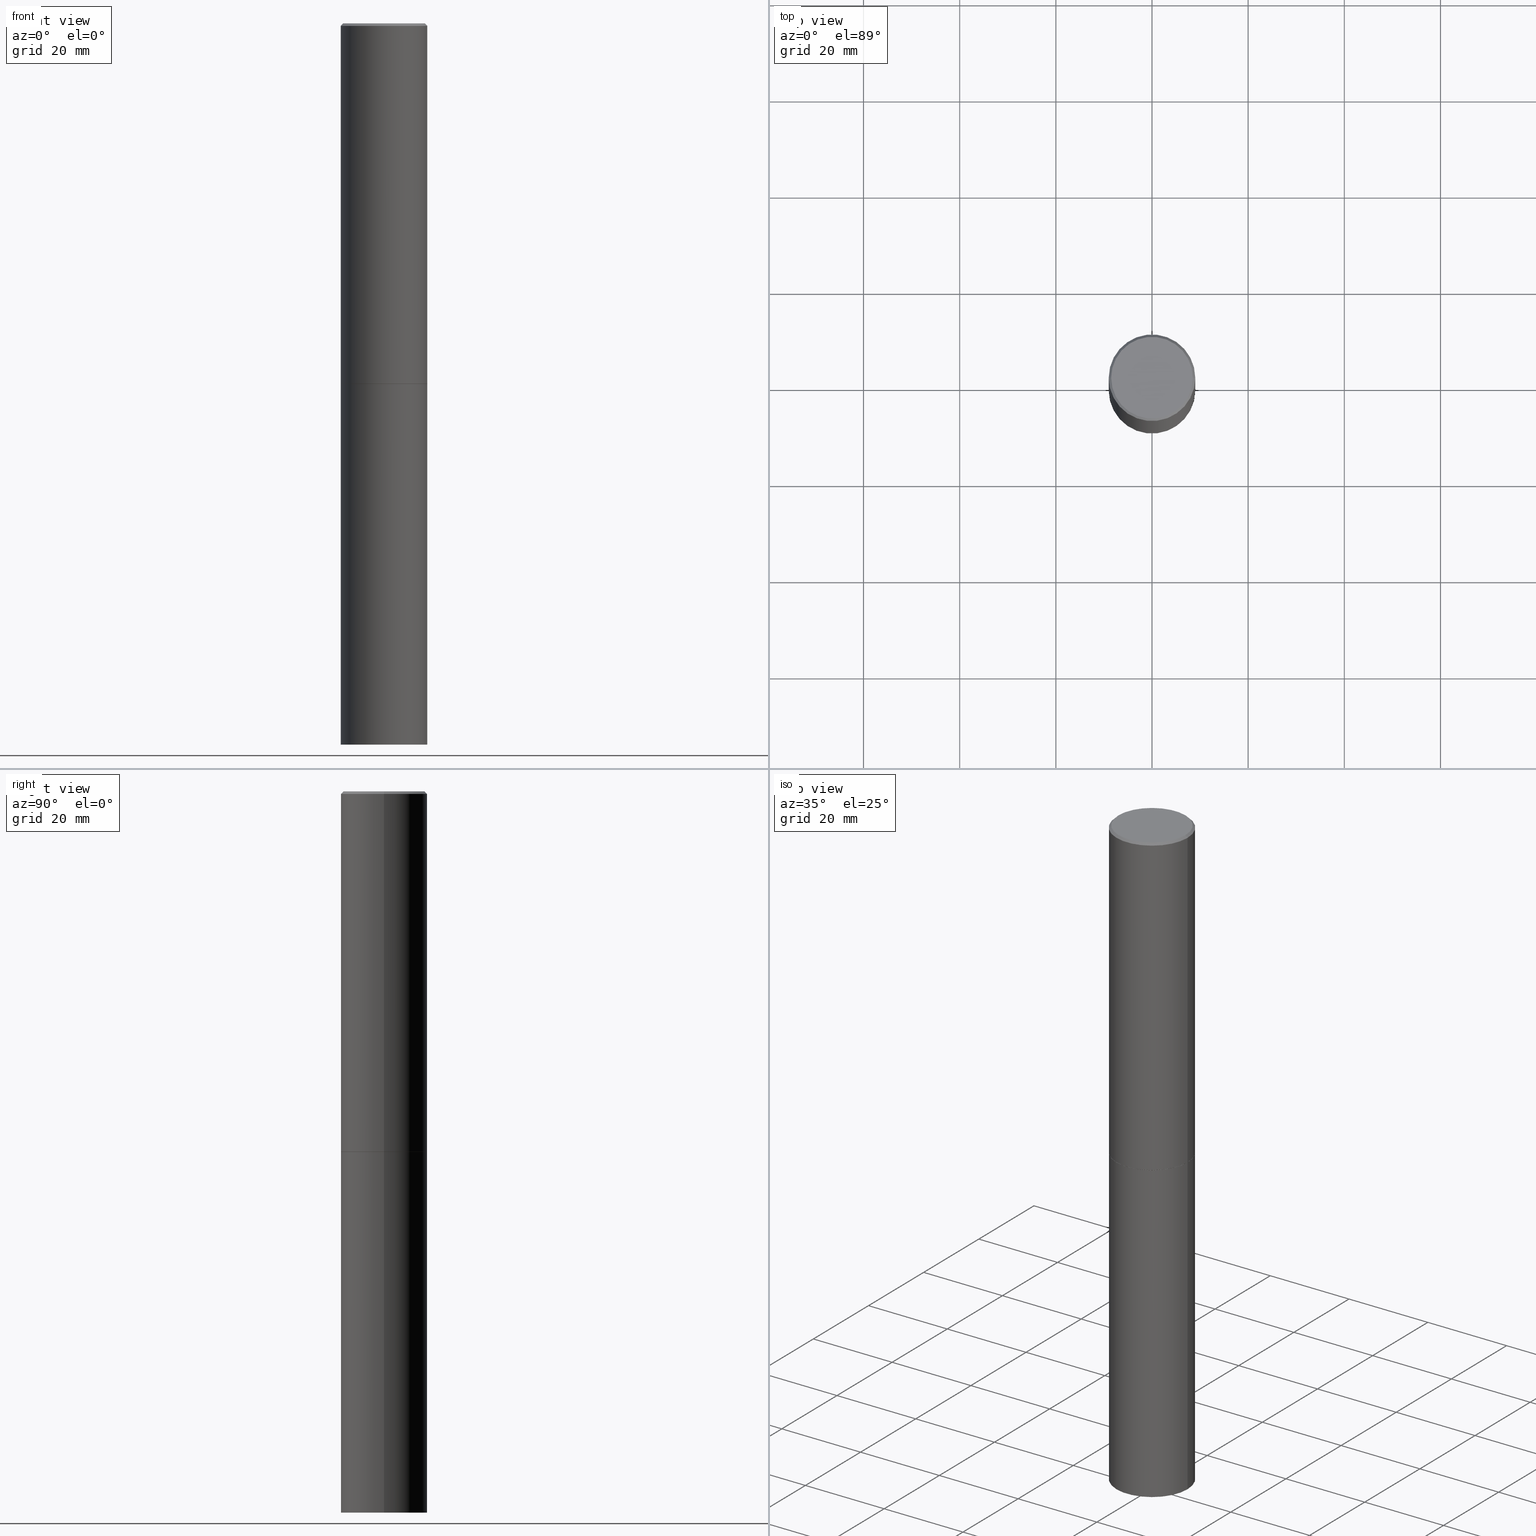
[diagram: canonical four-view strip — front | top / right | iso, engineering-drawing reading convention]
A machine part, canonical four-view strip (front | top / right | iso — engineering-drawing reading convention). The complete STEP part file that produces these views, byte-faithful:
ISO-10303-21;
HEADER;
FILE_DESCRIPTION (( 'STEP AP203' ),
    '1' );
FILE_NAME ('49463.STEP',
    '2024-02-28T22:24:11',
    ( '' ),
    ( '' ),
    'SwSTEP 2.0',
    'SolidWorks 2023',
    '' );
FILE_SCHEMA (( 'CONFIG_CONTROL_DESIGN' ));
ENDSEC;

DATA;
#1 = CALENDAR_DATE ( 2024, 28, 2 ) ;
#2 = FACE_OUTER_BOUND ( 'NONE', #45, .T. ) ;
#3 = PRODUCT_DEFINITION_SHAPE ( 'NONE', 'NONE',  #6 ) ;
#4 = CARTESIAN_POINT ( 'NONE',  ( 0.3543499999999999983, -2.309335587137632500E-14, -5.905499999999999972 ) ) ;
#5 = DIRECTION ( 'NONE',  ( -2.445468806185136597E-29, 3.491481338843145583E-15, 1.000000000000000000 ) ) ;
#6 = PRODUCT_DEFINITION ( 'UNKNOWN', '', #81, #237 ) ;
#7 = ORIENTED_EDGE ( 'NONE', *, *, #172, .F. ) ;
#8 = CARTESIAN_POINT ( 'NONE',  ( -0.3543499999999999983, -2.670009363154171868E-15, -2.951700000000000212 ) ) ;
#9 = EDGE_LOOP ( 'NONE', ( #117, #97, #40, #299 ) ) ;
#10 = DIRECTION ( 'NONE',  ( 1.000000000000000000, -6.982962677686266711E-15, 4.876176775795935232E-29 ) ) ;
#11 = VERTEX_POINT ( 'NONE', #356 ) ;
#12 = FACE_OUTER_BOUND ( 'NONE', #201, .T. ) ;
#13 = ORIENTED_EDGE ( 'NONE', *, *, #26, .F. ) ;
#14 = CIRCLE ( 'NONE', #79, 0.3533499999999999974 ) ;
#15 = CARTESIAN_POINT ( 'NONE',  ( -0.3533499999999999974, -7.793295738045619809E-15, -2.952700000000000546 ) ) ;
#16 = EDGE_CURVE ( 'NONE', #176, #178, #47, .T. ) ;
#17 = DIRECTION ( 'NONE',  ( -2.445468806185136597E-29, 3.491481338843145583E-15, 1.000000000000000000 ) ) ;
#18 = APPLICATION_CONTEXT ( 'configuration controlled 3d designs of mechanical parts and assemblies' ) ;
#19 = CIRCLE ( 'NONE', #161, 0.3543499999999999983 ) ;
#20 = DIRECTION ( 'NONE',  ( -2.445468806185136597E-29, 3.491481338843145583E-15, 1.000000000000000000 ) ) ;
#21 = EDGE_LOOP ( 'NONE', ( #344, #270, #125, #235 ) ) ;
#22 = CARTESIAN_POINT ( 'NONE',  ( 7.220735744022853640E-29, -1.030929694920215659E-14, -2.952700000000000546 ) ) ;
#23 = CALENDAR_DATE ( 2024, 28, 2 ) ;
#24 = CARTESIAN_POINT ( 'NONE',  ( 0.3533499999999999974, -1.277672681136259888E-14, -2.952700000000000546 ) ) ;
#25 = PERSON_AND_ORGANIZATION ( #271, #190 ) ;
#26 = EDGE_CURVE ( 'NONE', #355, #208, #131, .T. ) ;
#27 = PERSON_AND_ORGANIZATION_ROLE ( 'creator' ) ;
#28 = AXIS2_PLACEMENT_3D ( 'NONE', #341, #88, #197 ) ;
#29 = DIRECTION ( 'NONE',  ( -2.445468806185136597E-29, 3.491481338843145583E-15, 1.000000000000000000 ) ) ;
#30 = DIRECTION ( 'NONE',  ( -1.000000000000000000, 6.982962677686266711E-15, 0.000000000000000000 ) ) ;
#31 = CARTESIAN_POINT ( 'NONE',  ( -0.3543499999999999983, -1.294631181370425968E-14, -5.905499999999999972 ) ) ;
#32 = CLOSED_SHELL ( 'NONE', ( #306, #277, #248, #76, #294, #220, #297, #92 ) ) ;
#33 = AXIS2_PLACEMENT_3D ( 'NONE', #22, #188, #129 ) ;
#34 = AXIS2_PLACEMENT_3D ( 'NONE', #153, #361, #244 ) ;
#35 = CYLINDRICAL_SURFACE ( 'NONE', #284, 0.3543499999999998873 ) ;
#36 = ORIENTED_EDGE ( 'NONE', *, *, #209, .F. ) ;
#37 = DIRECTION ( 'NONE',  ( -1.000000000000000000, 6.982962677686265922E-15, -4.876176775795935793E-29 ) ) ;
#38 = EDGE_CURVE ( 'NONE', #206, #348, #175, .T. ) ;
#39 = CYLINDRICAL_SURFACE ( 'NONE', #34, 0.3543499999999998873 ) ;
#40 = ORIENTED_EDGE ( 'NONE', *, *, #116, .T. ) ;
#41 = AXIS2_PLACEMENT_3D ( 'NONE', #205, #65, #354 ) ;
#42 = DIRECTION ( 'NONE',  ( 1.000000000000000000, 0.000000000000000000, 0.000000000000000000 ) ) ;
#43 = CARTESIAN_POINT ( 'NONE',  ( 1.444171603492632270E-28, -2.061894304653819197E-14, -5.905499999999999972 ) ) ;
#44 = ADVANCED_FACE ( 'NONE', ( #2 ), #221, .T. ) ;
#45 = EDGE_LOOP ( 'NONE', ( #145, #66 ) ) ;
#46 = FACE_OUTER_BOUND ( 'NONE', #183, .T. ) ;
#47 = CIRCLE ( 'NONE', #353, 0.3543499999999999983 ) ;
#48 = AXIS2_PLACEMENT_3D ( 'NONE', #207, #343, #30 ) ;
#49 = DIRECTION ( 'NONE',  ( -1.000000000000000000, 6.982962677686265922E-15, -4.876176775795935793E-29 ) ) ;
#50 = ORIENTED_EDGE ( 'NONE', *, *, #154, .T. ) ;
#51 = SHAPE_DEFINITION_REPRESENTATION ( #3, #52 ) ;
#52 = ADVANCED_BREP_SHAPE_REPRESENTATION ( '49463', ( #308, #61, #112 ), #229 ) ;
#53 = EDGE_CURVE ( 'NONE', #176, #11, #282, .T. ) ;
#54 = COORDINATED_UNIVERSAL_TIME_OFFSET ( 5, 0, .BEHIND. ) ;
#55 = AXIS2_PLACEMENT_3D ( 'NONE', #230, #324, #37 ) ;
#56 = CALENDAR_DATE ( 2024, 28, 2 ) ;
#57 = DIRECTION ( 'NONE',  ( -2.445468806185136877E-29, 3.491481338843145188E-15, 1.000000000000000000 ) ) ;
#58 = COORDINATED_UNIVERSAL_TIME_OFFSET ( 5, 0, .BEHIND. ) ;
#59 = CC_DESIGN_PERSON_AND_ORGANIZATION_ASSIGNMENT ( #138, #136, ( #120 ) ) ;
#60 = CIRCLE ( 'NONE', #255, 0.3343499999999996475 ) ;
#61 = MANIFOLD_SOLID_BREP ( 'Body-Move/Copy2[2]', #32 ) ;
#62 = DIRECTION ( 'NONE',  ( -2.445468806185136597E-29, 3.491481338843145583E-15, 1.000000000000000000 ) ) ;
#63 = EDGE_LOOP ( 'NONE', ( #13, #169, #350, #288 ) ) ;
#64 = APPROVAL ( #113, 'UNSPECIFIED' ) ;
#65 = DIRECTION ( 'NONE',  ( -2.445468806185136597E-29, 3.491481338843145583E-15, 1.000000000000000000 ) ) ;
#66 = ORIENTED_EDGE ( 'NONE', *, *, #196, .F. ) ;
#67 = LINE ( 'NONE', #141, #323 ) ;
#68 = EDGE_LOOP ( 'NONE', ( #50, #300, #160, #119 ) ) ;
#69 = FACE_OUTER_BOUND ( 'NONE', #273, .T. ) ;
#70 = ORIENTED_EDGE ( 'NONE', *, *, #38, .F. ) ;
#71 = LINE ( 'NONE', #217, #335 ) ;
#72 = ORIENTED_EDGE ( 'NONE', *, *, #53, .T. ) ;
#73 = MECHANICAL_CONTEXT ( 'NONE', #18, 'mechanical' ) ;
#74 = EDGE_CURVE ( 'NONE', #233, #348, #253, .T. ) ;
#75 = APPROVAL_PERSON_ORGANIZATION ( #365, #64, #109 ) ;
#76 = ADVANCED_FACE ( 'NONE', ( #225 ), #104, .T. ) ;
#77 = DIRECTION ( 'NONE',  ( 0.7071067811865459074, -7.319954787623251312E-15, -0.7071067811865492381 ) ) ;
#78 = PLANE ( 'NONE',  #242 ) ;
#79 = AXIS2_PLACEMENT_3D ( 'NONE', #274, #20, #330 ) ;
#80 = CALENDAR_DATE ( 2024, 28, 2 ) ;
#81 = PRODUCT_DEFINITION_FORMATION_WITH_SPECIFIED_SOURCE ( 'ANY', '', #198, .NOT_KNOWN. ) ;
#82 = APPROVAL_DATE_TIME ( #86, #240 ) ;
#83 = EDGE_CURVE ( 'NONE', #327, #233, #279, .T. ) ;
#84 = AXIS2_PLACEMENT_3D ( 'NONE', #268, #272, #49 ) ;
#85 = CC_DESIGN_APPROVAL ( #240, ( #6 ) ) ;
#86 = DATE_AND_TIME ( #23, #346 ) ;
#87 = DIMENSIONAL_EXPONENTS ( 1.000000000000000000, 0.000000000000000000, 0.000000000000000000, 0.000000000000000000, 0.000000000000000000, 0.000000000000000000, 0.000000000000000000 ) ;
#88 = DIRECTION ( 'NONE',  ( 2.445468806185136597E-29, -3.491481338843145583E-15, -1.000000000000000000 ) ) ;
#89 = CARTESIAN_POINT ( 'NONE',  ( 7.220735744022852519E-29, -1.030929694920215502E-14, -2.952700000000000102 ) ) ;
#90 = CIRCLE ( 'NONE', #222, 0.3533499999999999974 ) ;
#91 = ORIENTED_EDGE ( 'NONE', *, *, #116, .F. ) ;
#92 = ADVANCED_FACE ( 'NONE', ( #140 ), #202, .F. ) ;
#93 = FACE_OUTER_BOUND ( 'NONE', #185, .T. ) ;
#94 = DIRECTION ( 'NONE',  ( 1.000000000000000000, -6.982962677686266711E-15, 4.876061227832602160E-29 ) ) ;
#95 = ORIENTED_EDGE ( 'NONE', *, *, #336, .F. ) ;
#96 = CARTESIAN_POINT ( 'NONE',  ( 0.000000000000000000, 0.000000000000000000, 0.000000000000000000 ) ) ;
#97 = ORIENTED_EDGE ( 'NONE', *, *, #128, .F. ) ;
#98 = CC_DESIGN_APPROVAL ( #123, ( #81 ) ) ;
#99 = CARTESIAN_POINT ( 'NONE',  ( 1.444171603492632270E-28, -2.061894304653819197E-14, -5.905499999999999972 ) ) ;
#100 = ORIENTED_EDGE ( 'NONE', *, *, #16, .T. ) ;
#101 = FACE_OUTER_BOUND ( 'NONE', #173, .T. ) ;
#102 = DIRECTION ( 'NONE',  ( -0.7071067811864267805, 7.493145998869918709E-15, 0.7071067811866682540 ) ) ;
#103 = PRODUCT_RELATED_PRODUCT_CATEGORY ( 'detail', '', ( #198 ) ) ;
#104 = CONICAL_SURFACE ( 'NONE', #28, 0.3543499999999996652, 0.7853981633974459475 ) ;
#105 = LOCAL_TIME ( 17, 24, 11.00000000000000000, #224 ) ;
#106 = CARTESIAN_POINT ( 'NONE',  ( 0.3533499999999999974, -1.277672681136259888E-14, -2.952700000000000546 ) ) ;
#107 = CARTESIAN_POINT ( 'NONE',  ( 7.220735744022853640E-29, -1.030929694920215659E-14, -2.952700000000000546 ) ) ;
#108 = APPROVAL_STATUS ( 'not_yet_approved' ) ;
#109 = APPROVAL_ROLE ( '' ) ;
#110 = APPROVAL_ROLE ( '' ) ;
#111 = VECTOR ( 'NONE', #115, 39.37007874015748143 ) ;
#112 = AXIS2_PLACEMENT_3D ( 'NONE', #187, #182, #42 ) ;
#113 = APPROVAL_STATUS ( 'not_yet_approved' ) ;
#114 = DIRECTION ( 'NONE',  ( -1.000000000000000000, 6.982962677686265922E-15, -4.876176775795935793E-29 ) ) ;
#115 = DIRECTION ( 'NONE',  ( 0.7071067811864267805, -2.468850131080992517E-15, 0.7071067811866682540 ) ) ;
#116 = EDGE_CURVE ( 'NONE', #148, #206, #351, .T. ) ;
#117 = ORIENTED_EDGE ( 'NONE', *, *, #329, .F. ) ;
#118 = DIRECTION ( 'NONE',  ( 1.000000000000000000, -6.982962677686265922E-15, 0.000000000000000000 ) ) ;
#119 = ORIENTED_EDGE ( 'NONE', *, *, #74, .F. ) ;
#120 = SECURITY_CLASSIFICATION ( '', '', #254 ) ;
#121 = DIRECTION ( 'NONE',  ( 1.000000000000000000, -6.982962677686267499E-15, 0.000000000000000000 ) ) ;
#122 = ORIENTED_EDGE ( 'NONE', *, *, #286, .F. ) ;
#123 = APPROVAL ( #108, 'UNSPECIFIED' ) ;
#124 = FACE_OUTER_BOUND ( 'NONE', #68, .T. ) ;
#125 = ORIENTED_EDGE ( 'NONE', *, *, #154, .F. ) ;
#126 = CARTESIAN_POINT ( 'NONE',  ( 0.3543499999999999983, -1.278021829270144189E-14, -2.951700000000000212 ) ) ;
#127 = CONICAL_SURFACE ( 'NONE', #366, 0.3533499999999999974, 0.7853981633972775267 ) ;
#128 = EDGE_CURVE ( 'NONE', #148, #159, #60, .T. ) ;
#129 = DIRECTION ( 'NONE',  ( 1.000000000000000000, -6.982962677686267499E-15, 0.000000000000000000 ) ) ;
#130 = CARTESIAN_POINT ( 'NONE',  ( 0.3543499999999996652, -2.500847092287203323E-15, -0.02000000000000008021 ) ) ;
#131 = LINE ( 'NONE', #215, #260 ) ;
#132 = DIRECTION ( 'NONE',  ( 1.000000000000000000, -6.982962677686265922E-15, 0.000000000000000000 ) ) ;
#133 = AXIS2_PLACEMENT_3D ( 'NONE', #158, #301, #132 ) ;
#134 = CC_DESIGN_SECURITY_CLASSIFICATION ( #120, ( #81 ) ) ;
#135 = DIRECTION ( 'NONE',  ( -2.445468806185136877E-29, 3.491481338843145188E-15, 1.000000000000000000 ) ) ;
#136 = PERSON_AND_ORGANIZATION_ROLE ( 'classification_officer' ) ;
#137 = DIRECTION ( 'NONE',  ( -2.445468806185136877E-29, 3.491481338843145188E-15, 1.000000000000000000 ) ) ;
#138 = PERSON_AND_ORGANIZATION ( #271, #190 ) ;
#139 = APPROVAL_DATE_TIME ( #281, #123 ) ;
#140 = FACE_OUTER_BOUND ( 'NONE', #142, .T. ) ;
#141 = CARTESIAN_POINT ( 'NONE',  ( -0.3543499999999999983, 2.517808184165914997E-15, -1.743024649231826066E-29 ) ) ;
#142 = EDGE_LOOP ( 'NONE', ( #319, #265 ) ) ;
#143 = CARTESIAN_POINT ( 'NONE',  ( -0.3543499999999996652, 2.404583198061263029E-15, -0.02000000000000008021 ) ) ;
#144 = AXIS2_PLACEMENT_3D ( 'NONE', #249, #162, #114 ) ;
#145 = ORIENTED_EDGE ( 'NONE', *, *, #16, .F. ) ;
#146 = LOCAL_TIME ( 17, 24, 11.00000000000000000, #334 ) ;
#147 = CARTESIAN_POINT ( 'NONE',  ( -1.043851414335219820E-46, 1.490343170380447200E-32, 4.268512490100411279E-18 ) ) ;
#148 = VERTEX_POINT ( 'NONE', #171 ) ;
#149 = DIRECTION ( 'NONE',  ( -2.445468806185136597E-29, 3.491481338843145583E-15, 1.000000000000000000 ) ) ;
#150 = DIRECTION ( 'NONE',  ( 1.000000000000000000, -6.982962677686265922E-15, 0.000000000000000000 ) ) ;
#151 = ORIENTED_EDGE ( 'NONE', *, *, #74, .T. ) ;
#152 = AXIS2_PLACEMENT_3D ( 'NONE', #89, #149, #318 ) ;
#153 = CARTESIAN_POINT ( 'NONE',  ( 0.000000000000000000, 0.000000000000000000, 0.000000000000000000 ) ) ;
#154 = EDGE_CURVE ( 'NONE', #233, #208, #19, .T. ) ;
#155 = UNCERTAINTY_MEASURE_WITH_UNIT (LENGTH_MEASURE( 1.000000000000000082E-05 ), #362, 'distance_accuracy_value', 'NONE');
#156 = LENGTH_MEASURE_WITH_UNIT ( LENGTH_MEASURE( 0.02539999999999999897 ), #331 );
#157 =( NAMED_UNIT ( * ) SI_UNIT ( $, .STERADIAN. ) SOLID_ANGLE_UNIT ( ) );
#158 = CARTESIAN_POINT ( 'NONE',  ( 7.220735744022852519E-29, -1.030929694920215502E-14, -2.952700000000000102 ) ) ;
#159 = VERTEX_POINT ( 'NONE', #258 ) ;
#160 = ORIENTED_EDGE ( 'NONE', *, *, #266, .F. ) ;
#161 = AXIS2_PLACEMENT_3D ( 'NONE', #289, #326, #118 ) ;
#162 = DIRECTION ( 'NONE',  ( 2.438088387897960049E-29, -3.491481338843145188E-15, -1.000000000000000000 ) ) ;
#163 = DATE_TIME_ROLE ( 'classification_date' ) ;
#164 = DATE_AND_TIME ( #56, #261 ) ;
#165 = CLOSED_SHELL ( 'NONE', ( #181, #44, #357, #193 ) ) ;
#166 = CIRCLE ( 'NONE', #133, 0.3543499999999999983 ) ;
#167 = DIRECTION ( 'NONE',  ( -2.445468806185136597E-29, 3.491481338843145583E-15, 1.000000000000000000 ) ) ;
#168 = CARTESIAN_POINT ( 'NONE',  ( -0.3543499999999996652, 2.404583198061263029E-15, -0.02000000000000008021 ) ) ;
#169 = ORIENTED_EDGE ( 'NONE', *, *, #286, .T. ) ;
#170 = CC_DESIGN_PERSON_AND_ORGANIZATION_ASSIGNMENT ( #310, #27, ( #6 ) ) ;
#171 = CARTESIAN_POINT ( 'NONE',  ( -0.3343499999999996475, 2.369668384672832169E-15, 4.268512490083961526E-18 ) ) ;
#172 = EDGE_CURVE ( 'NONE', #178, #247, #67, .T. ) ;
#173 = EDGE_LOOP ( 'NONE', ( #352, #322, #151, #70 ) ) ;
#174 = CYLINDRICAL_SURFACE ( 'NONE', #199, 0.3543499999999999983 ) ;
#175 = CIRCLE ( 'NONE', #212, 0.3543499999999996652 ) ;
#176 = VERTEX_POINT ( 'NONE', #4 ) ;
#177 = DIRECTION ( 'NONE',  ( -2.445468806185136597E-29, 3.491481338843145583E-15, 1.000000000000000000 ) ) ;
#178 = VERTEX_POINT ( 'NONE', #31 ) ;
#179 = EDGE_CURVE ( 'NONE', #247, #11, #315, .T. ) ;
#180 =( NAMED_UNIT ( * ) PLANE_ANGLE_UNIT ( ) SI_UNIT ( $, .RADIAN. ) );
#181 = ADVANCED_FACE ( 'NONE', ( #69 ), #174, .T. ) ;
#182 = DIRECTION ( 'NONE',  ( 0.000000000000000000, 0.000000000000000000, 1.000000000000000000 ) ) ;
#183 = EDGE_LOOP ( 'NONE', ( #317, #259 ) ) ;
#184 = VECTOR ( 'NONE', #135, 39.37007874015748143 ) ;
#185 = EDGE_LOOP ( 'NONE', ( #7, #231, #72, #290 ) ) ;
#186 = CC_DESIGN_DATE_AND_TIME_ASSIGNMENT ( #164, #309, ( #6 ) ) ;
#187 = CARTESIAN_POINT ( 'NONE',  ( 0.000000000000000000, 0.000000000000000000, 0.000000000000000000 ) ) ;
#188 = DIRECTION ( 'NONE',  ( -2.445468806185136597E-29, 3.491481338843145583E-15, 1.000000000000000000 ) ) ;
#189 = AXIS2_PLACEMENT_3D ( 'NONE', #99, #62, #234 ) ;
#190 = ORGANIZATION ( 'UNSPECIFIED', 'UNSPECIFIED', '' ) ;
#191 = DATE_AND_TIME ( #80, #146 ) ;
#192 = CC_DESIGN_DATE_AND_TIME_ASSIGNMENT ( #364, #163, ( #120 ) ) ;
#193 = ADVANCED_FACE ( 'NONE', ( #93 ), #292, .T. ) ;
#194 = APPROVAL_ROLE ( '' ) ;
#195 = PERSON_AND_ORGANIZATION ( #271, #190 ) ;
#196 = EDGE_CURVE ( 'NONE', #178, #176, #250, .T. ) ;
#197 = DIRECTION ( 'NONE',  ( -1.000000000000000000, 6.982962677686266711E-15, 0.000000000000000000 ) ) ;
#198 = PRODUCT ( '49463', '49463', '', ( #73 ) ) ;
#199 = AXIS2_PLACEMENT_3D ( 'NONE', #96, #347, #236 ) ;
#200 = FACE_OUTER_BOUND ( 'NONE', #63, .T. ) ;
#201 = EDGE_LOOP ( 'NONE', ( #325, #359, #227, #91 ) ) ;
#202 = PLANE ( 'NONE',  #55 ) ;
#203 = DIRECTION ( 'NONE',  ( -2.445468806185136877E-29, 3.491481338843145188E-15, 1.000000000000000000 ) ) ;
#204 = ORIENTED_EDGE ( 'NONE', *, *, #172, .T. ) ;
#205 = CARTESIAN_POINT ( 'NONE',  ( 0.000000000000000000, 0.000000000000000000, 0.000000000000000000 ) ) ;
#206 = VERTEX_POINT ( 'NONE', #143 ) ;
#207 = CARTESIAN_POINT ( 'NONE',  ( 4.890937612370293302E-31, -6.982962677686318726E-17, -0.02000000000000008021 ) ) ;
#208 = VERTEX_POINT ( 'NONE', #8 ) ;
#209 = EDGE_CURVE ( 'NONE', #327, #355, #90, .T. ) ;
#210 = CARTESIAN_POINT ( 'NONE',  ( 7.218290275216666916E-29, -1.030580546786331359E-14, -2.951700000000000212 ) ) ;
#211 = CARTESIAN_POINT ( 'NONE',  ( 4.890937612370293302E-31, -6.982962677686318726E-17, -0.02000000000000008021 ) ) ;
#212 = AXIS2_PLACEMENT_3D ( 'NONE', #211, #332, #302 ) ;
#213 = CC_DESIGN_APPROVAL ( #64, ( #120 ) ) ;
#214 = DIRECTION ( 'NONE',  ( 1.000000000000000000, -6.982962677686265922E-15, 4.876176775795935793E-29 ) ) ;
#215 = CARTESIAN_POINT ( 'NONE',  ( -0.3533499999999999974, -7.798594192393843789E-15, -2.952700000000000546 ) ) ;
#216 = FACE_OUTER_BOUND ( 'NONE', #21, .T. ) ;
#217 = CARTESIAN_POINT ( 'NONE',  ( 0.3543499999999996652, -2.500847092287203323E-15, -0.02000000000000008021 ) ) ;
#218 = VECTOR ( 'NONE', #57, 39.37007874015748143 ) ;
#219 = PERSON_AND_ORGANIZATION ( #271, #190 ) ;
#220 = ADVANCED_FACE ( 'NONE', ( #200 ), #127, .T. ) ;
#221 = PLANE ( 'NONE',  #144 ) ;
#222 = AXIS2_PLACEMENT_3D ( 'NONE', #262, #5, #121 ) ;
#223 = APPROVAL_PERSON_ORGANIZATION ( #195, #240, #110 ) ;
#224 = COORDINATED_UNIVERSAL_TIME_OFFSET ( 5, 0, .BEHIND. ) ;
#225 = FACE_OUTER_BOUND ( 'NONE', #9, .T. ) ;
#226 = DIRECTION ( 'NONE',  ( -2.445468806185136597E-29, 3.491481338843145583E-15, 1.000000000000000000 ) ) ;
#227 = ORIENTED_EDGE ( 'NONE', *, *, #266, .T. ) ;
#228 = VECTOR ( 'NONE', #137, 39.37007874015748143 ) ;
#229 =( GEOMETRIC_REPRESENTATION_CONTEXT ( 3 ) GLOBAL_UNCERTAINTY_ASSIGNED_CONTEXT ( ( #155 ) ) GLOBAL_UNIT_ASSIGNED_CONTEXT ( ( #362, #180, #157 ) ) REPRESENTATION_CONTEXT ( 'NONE', 'WORKASPACE' ) );
#230 = CARTESIAN_POINT ( 'NONE',  ( 2.334753571284400520E-15, 0.3343499999999996475, -1.165242529397154385E-15 ) ) ;
#231 = ORIENTED_EDGE ( 'NONE', *, *, #196, .T. ) ;
#232 = DIRECTION ( 'NONE',  ( 1.000000000000000000, -6.982962677686267499E-15, 0.000000000000000000 ) ) ;
#233 = VERTEX_POINT ( 'NONE', #126 ) ;
#234 = DIRECTION ( 'NONE',  ( 1.000000000000000000, -6.982962677686271444E-15, 0.000000000000000000 ) ) ;
#235 = ORIENTED_EDGE ( 'NONE', *, *, #83, .F. ) ;
#236 = DIRECTION ( 'NONE',  ( 1.000000000000000000, -6.982962677686266711E-15, 4.876176775795935793E-29 ) ) ;
#237 = DESIGN_CONTEXT ( 'detailed design', #243, 'design' ) ;
#238 = APPROVAL_PERSON_ORGANIZATION ( #337, #123, #194 ) ;
#239 = CARTESIAN_POINT ( 'NONE',  ( -0.3543499999999998873, 2.517808184165914208E-15, -1.743024649231825225E-29 ) ) ;
#240 = APPROVAL ( #251, 'UNSPECIFIED' ) ;
#241 = APPLICATION_PROTOCOL_DEFINITION ( 'international standard', 'config_control_design', 1994, #18 ) ;
#242 = AXIS2_PLACEMENT_3D ( 'NONE', #107, #296, #214 ) ;
#243 = APPLICATION_CONTEXT ( 'configuration controlled 3d designs of mechanical parts and assemblies' ) ;
#244 = DIRECTION ( 'NONE',  ( 1.000000000000000000, -6.982962677686266711E-15, 4.876176775795935232E-29 ) ) ;
#245 = DIRECTION ( 'NONE',  ( 1.000000000000000000, -6.982962677686271444E-15, 0.000000000000000000 ) ) ;
#246 = EDGE_CURVE ( 'NONE', #159, #148, #269, .T. ) ;
#247 = VERTEX_POINT ( 'NONE', #267 ) ;
#248 = ADVANCED_FACE ( 'NONE', ( #12 ), #280, .T. ) ;
#249 = CARTESIAN_POINT ( 'NONE',  ( 2.474412824838272661E-15, 0.3543499999999794037, -5.905500000000000860 ) ) ;
#250 = CIRCLE ( 'NONE', #189, 0.3543499999999999983 ) ;
#251 = APPROVAL_STATUS ( 'not_yet_approved' ) ;
#252 = COORDINATED_UNIVERSAL_TIME_OFFSET ( 5, 0, .BEHIND. ) ;
#253 = LINE ( 'NONE', #338, #218 ) ;
#254 = SECURITY_CLASSIFICATION_LEVEL ( 'unclassified' ) ;
#255 = AXIS2_PLACEMENT_3D ( 'NONE', #321, #29, #94 ) ;
#256 = PERSON_AND_ORGANIZATION_ROLE ( 'design_supplier' ) ;
#257 = DIRECTION ( 'NONE',  ( -0.7071067811865459074, 2.468850131082239706E-15, -0.7071067811865492381 ) ) ;
#258 = CARTESIAN_POINT ( 'NONE',  ( 0.3343499999999996475, -2.397327298921056737E-15, 4.268512490116958099E-18 ) ) ;
#259 = ORIENTED_EDGE ( 'NONE', *, *, #179, .T. ) ;
#260 = VECTOR ( 'NONE', #102, 39.37007874015748143 ) ;
#261 = LOCAL_TIME ( 17, 24, 11.00000000000000000, #54 ) ;
#262 = CARTESIAN_POINT ( 'NONE',  ( 7.220735744022853640E-29, -1.030929694920215659E-14, -2.952700000000000546 ) ) ;
#263 = EDGE_LOOP ( 'NONE', ( #36, #122 ) ) ;
#264 = DIRECTION ( 'NONE',  ( -2.445468806185136597E-29, 3.491481338843145583E-15, 1.000000000000000000 ) ) ;
#265 = ORIENTED_EDGE ( 'NONE', *, *, #246, .T. ) ;
#266 = EDGE_CURVE ( 'NONE', #348, #206, #291, .T. ) ;
#267 = CARTESIAN_POINT ( 'NONE',  ( -0.3543499999999999983, -1.294631181370425968E-14, -2.952700000000000102 ) ) ;
#268 = CARTESIAN_POINT ( 'NONE',  ( 2.474412824838200480E-15, 0.3543499999999896732, -2.952700000000000990 ) ) ;
#269 = CIRCLE ( 'NONE', #298, 0.3343499999999996475 ) ;
#270 = ORIENTED_EDGE ( 'NONE', *, *, #26, .T. ) ;
#271 = PERSON ( 'UNSPECIFIED', 'UNSPECIFIED', 'UNSPECIFIED', ('UNSPECIFIED'), ('UNSPECIFIED'), ('UNSPECIFIED') ) ;
#272 = DIRECTION ( 'NONE',  ( 2.438088387897960049E-29, -3.491481338843145188E-15, -1.000000000000000000 ) ) ;
#273 = EDGE_LOOP ( 'NONE', ( #100, #204, #95, #293 ) ) ;
#274 = CARTESIAN_POINT ( 'NONE',  ( 7.220735744022853640E-29, -1.030929694920215659E-14, -2.952700000000000546 ) ) ;
#275 = LINE ( 'NONE', #239, #184 ) ;
#276 = CC_DESIGN_PERSON_AND_ORGANIZATION_ASSIGNMENT ( #25, #283, ( #81 ) ) ;
#277 = ADVANCED_FACE ( 'NONE', ( #124 ), #35, .T. ) ;
#278 = CALENDAR_DATE ( 2024, 28, 2 ) ;
#279 = LINE ( 'NONE', #24, #111 ) ;
#280 = CONICAL_SURFACE ( 'NONE', #48, 0.3543499999999996652, 0.7853981633974459475 ) ;
#281 = DATE_AND_TIME ( #278, #105 ) ;
#282 = LINE ( 'NONE', #313, #228 ) ;
#283 = PERSON_AND_ORGANIZATION_ROLE ( 'creator' ) ;
#284 = AXIS2_PLACEMENT_3D ( 'NONE', #287, #264, #10 ) ;
#285 = DIRECTION ( 'NONE',  ( 1.000000000000000000, -6.982962677686266711E-15, 0.000000000000000000 ) ) ;
#286 = EDGE_CURVE ( 'NONE', #355, #327, #14, .T. ) ;
#287 = CARTESIAN_POINT ( 'NONE',  ( 0.000000000000000000, 0.000000000000000000, 0.000000000000000000 ) ) ;
#288 = ORIENTED_EDGE ( 'NONE', *, *, #342, .F. ) ;
#289 = CARTESIAN_POINT ( 'NONE',  ( 7.218290275216666916E-29, -1.030580546786331359E-14, -2.951700000000000212 ) ) ;
#290 = ORIENTED_EDGE ( 'NONE', *, *, #179, .F. ) ;
#291 = CIRCLE ( 'NONE', #311, 0.3543499999999996652 ) ;
#292 = CYLINDRICAL_SURFACE ( 'NONE', #41, 0.3543499999999999983 ) ;
#293 = ORIENTED_EDGE ( 'NONE', *, *, #53, .F. ) ;
#294 = ADVANCED_FACE ( 'NONE', ( #101 ), #39, .T. ) ;
#295 = CARTESIAN_POINT ( 'NONE',  ( 7.220735744022853640E-29, -1.030929694920215659E-14, -2.952700000000000546 ) ) ;
#296 = DIRECTION ( 'NONE',  ( -2.438088387897960049E-29, 3.491481338843145188E-15, 1.000000000000000000 ) ) ;
#297 = ADVANCED_FACE ( 'NONE', ( #303 ), #78, .F. ) ;
#298 = AXIS2_PLACEMENT_3D ( 'NONE', #147, #226, #316 ) ;
#299 = ORIENTED_EDGE ( 'NONE', *, *, #38, .T. ) ;
#300 = ORIENTED_EDGE ( 'NONE', *, *, #360, .T. ) ;
#301 = DIRECTION ( 'NONE',  ( -2.445468806185136597E-29, 3.491481338843145583E-15, 1.000000000000000000 ) ) ;
#302 = DIRECTION ( 'NONE',  ( 1.000000000000000000, -6.982962677686266711E-15, 0.000000000000000000 ) ) ;
#303 = FACE_OUTER_BOUND ( 'NONE', #263, .T. ) ;
#304 = VECTOR ( 'NONE', #257, 39.37007874015748143 ) ;
#305 = CC_DESIGN_PERSON_AND_ORGANIZATION_ASSIGNMENT ( #219, #256, ( #81 ) ) ;
#306 = ADVANCED_FACE ( 'NONE', ( #216 ), #358, .T. ) ;
#307 = APPROVAL_DATE_TIME ( #191, #64 ) ;
#308 = MANIFOLD_SOLID_BREP ( 'Body-Move/Copy2[1]', #165 ) ;
#309 = DATE_TIME_ROLE ( 'creation_date' ) ;
#310 = PERSON_AND_ORGANIZATION ( #271, #190 ) ;
#311 = AXIS2_PLACEMENT_3D ( 'NONE', #349, #167, #285 ) ;
#312 = LOCAL_TIME ( 17, 24, 11.00000000000000000, #252 ) ;
#313 = CARTESIAN_POINT ( 'NONE',  ( 0.3543499999999999983, -2.474412824838128694E-15, 1.727873240503289749E-29 ) ) ;
#314 = APPLICATION_PROTOCOL_DEFINITION ( 'international standard', 'config_control_design', 1994, #243 ) ;
#315 = CIRCLE ( 'NONE', #152, 0.3543499999999999983 ) ;
#316 = DIRECTION ( 'NONE',  ( 1.000000000000000000, -6.982962677686266711E-15, 4.876061227832602160E-29 ) ) ;
#317 = ORIENTED_EDGE ( 'NONE', *, *, #336, .T. ) ;
#318 = DIRECTION ( 'NONE',  ( 1.000000000000000000, -6.982962677686265922E-15, 0.000000000000000000 ) ) ;
#319 = ORIENTED_EDGE ( 'NONE', *, *, #128, .T. ) ;
#320 = CC_DESIGN_PERSON_AND_ORGANIZATION_ASSIGNMENT ( #363, #340, ( #198 ) ) ;
#321 = CARTESIAN_POINT ( 'NONE',  ( -1.043851414335219820E-46, 1.490343170380447200E-32, 4.268512490100411279E-18 ) ) ;
#322 = ORIENTED_EDGE ( 'NONE', *, *, #342, .T. ) ;
#323 = VECTOR ( 'NONE', #203, 39.37007874015748143 ) ;
#324 = DIRECTION ( 'NONE',  ( 2.438088387897960049E-29, -3.491481338843145188E-15, -1.000000000000000000 ) ) ;
#325 = ORIENTED_EDGE ( 'NONE', *, *, #246, .F. ) ;
#326 = DIRECTION ( 'NONE',  ( -2.445468806185136597E-29, 3.491481338843145583E-15, 1.000000000000000000 ) ) ;
#327 = VERTEX_POINT ( 'NONE', #106 ) ;
#328 = PLANE ( 'NONE',  #84 ) ;
#329 = EDGE_CURVE ( 'NONE', #159, #348, #71, .T. ) ;
#330 = DIRECTION ( 'NONE',  ( 1.000000000000000000, -6.982962677686267499E-15, 0.000000000000000000 ) ) ;
#331 =( LENGTH_UNIT ( ) NAMED_UNIT ( * ) SI_UNIT ( $, .METRE. ) );
#332 = DIRECTION ( 'NONE',  ( -2.445468806185136597E-29, 3.491481338843145583E-15, 1.000000000000000000 ) ) ;
#333 = DIRECTION ( 'NONE',  ( -2.445468806185136597E-29, 3.491481338843145583E-15, 1.000000000000000000 ) ) ;
#334 = COORDINATED_UNIVERSAL_TIME_OFFSET ( 5, 0, .BEHIND. ) ;
#335 = VECTOR ( 'NONE', #77, 39.37007874015748143 ) ;
#336 = EDGE_CURVE ( 'NONE', #11, #247, #166, .T. ) ;
#337 = PERSON_AND_ORGANIZATION ( #271, #190 ) ;
#338 = CARTESIAN_POINT ( 'NONE',  ( 0.3543499999999998873, -2.474412824838127905E-15, 1.727873240503289188E-29 ) ) ;
#339 = CIRCLE ( 'NONE', #345, 0.3543499999999999983 ) ;
#340 = PERSON_AND_ORGANIZATION_ROLE ( 'design_owner' ) ;
#341 = CARTESIAN_POINT ( 'NONE',  ( 4.890937612370293302E-31, -6.982962677686318726E-17, -0.02000000000000008021 ) ) ;
#342 = EDGE_CURVE ( 'NONE', #208, #233, #339, .T. ) ;
#343 = DIRECTION ( 'NONE',  ( 2.445468806185136597E-29, -3.491481338843145583E-15, -1.000000000000000000 ) ) ;
#344 = ORIENTED_EDGE ( 'NONE', *, *, #209, .T. ) ;
#345 = AXIS2_PLACEMENT_3D ( 'NONE', #210, #333, #150 ) ;
#346 = LOCAL_TIME ( 17, 24, 11.00000000000000000, #58 ) ;
#347 = DIRECTION ( 'NONE',  ( -2.445468806185136597E-29, 3.491481338843145583E-15, 1.000000000000000000 ) ) ;
#348 = VERTEX_POINT ( 'NONE', #130 ) ;
#349 = CARTESIAN_POINT ( 'NONE',  ( 4.890937612370293302E-31, -6.982962677686318726E-17, -0.02000000000000008021 ) ) ;
#350 = ORIENTED_EDGE ( 'NONE', *, *, #83, .T. ) ;
#351 = LINE ( 'NONE', #168, #304 ) ;
#352 = ORIENTED_EDGE ( 'NONE', *, *, #360, .F. ) ;
#353 = AXIS2_PLACEMENT_3D ( 'NONE', #43, #17, #245 ) ;
#354 = DIRECTION ( 'NONE',  ( 1.000000000000000000, -6.982962677686266711E-15, 4.876176775795935793E-29 ) ) ;
#355 = VERTEX_POINT ( 'NONE', #15 ) ;
#356 = CARTESIAN_POINT ( 'NONE',  ( 0.3543499999999999983, -1.278370977404028332E-14, -2.952700000000000102 ) ) ;
#357 = ADVANCED_FACE ( 'NONE', ( #46 ), #328, .F. ) ;
#358 = CONICAL_SURFACE ( 'NONE', #33, 0.3533499999999999974, 0.7853981633972775267 ) ;
#359 = ORIENTED_EDGE ( 'NONE', *, *, #329, .T. ) ;
#360 = EDGE_CURVE ( 'NONE', #208, #206, #275, .T. ) ;
#361 = DIRECTION ( 'NONE',  ( -2.445468806185136597E-29, 3.491481338843145583E-15, 1.000000000000000000 ) ) ;
#362 =( CONVERSION_BASED_UNIT ( 'INCH', #156 ) LENGTH_UNIT ( ) NAMED_UNIT ( #87 ) );
#363 = PERSON_AND_ORGANIZATION ( #271, #190 ) ;
#364 = DATE_AND_TIME ( #1, #312 ) ;
#365 = PERSON_AND_ORGANIZATION ( #271, #190 ) ;
#366 = AXIS2_PLACEMENT_3D ( 'NONE', #295, #177, #232 ) ;
ENDSEC;
END-ISO-10303-21;
